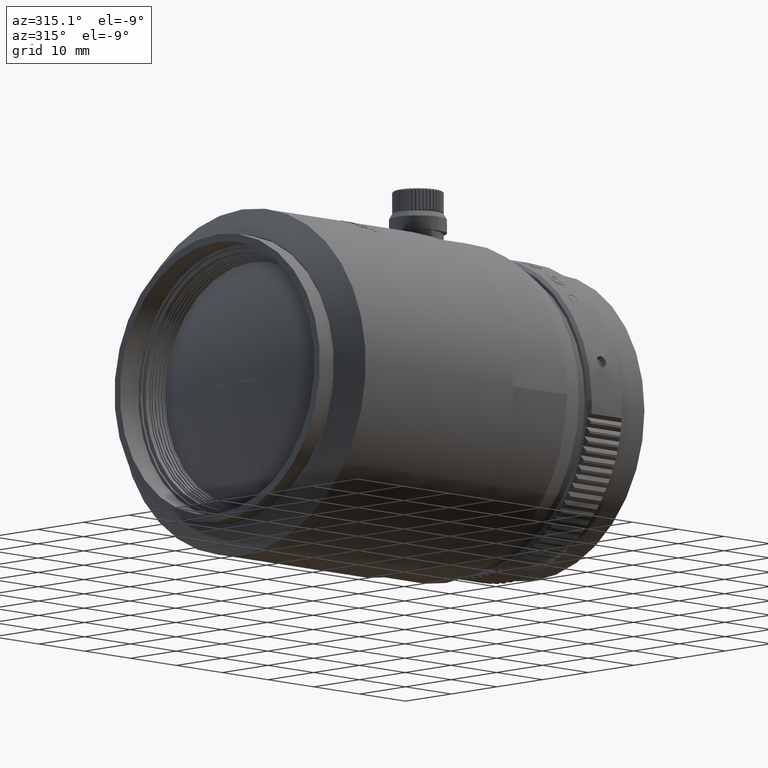
[diagram: clean part render]
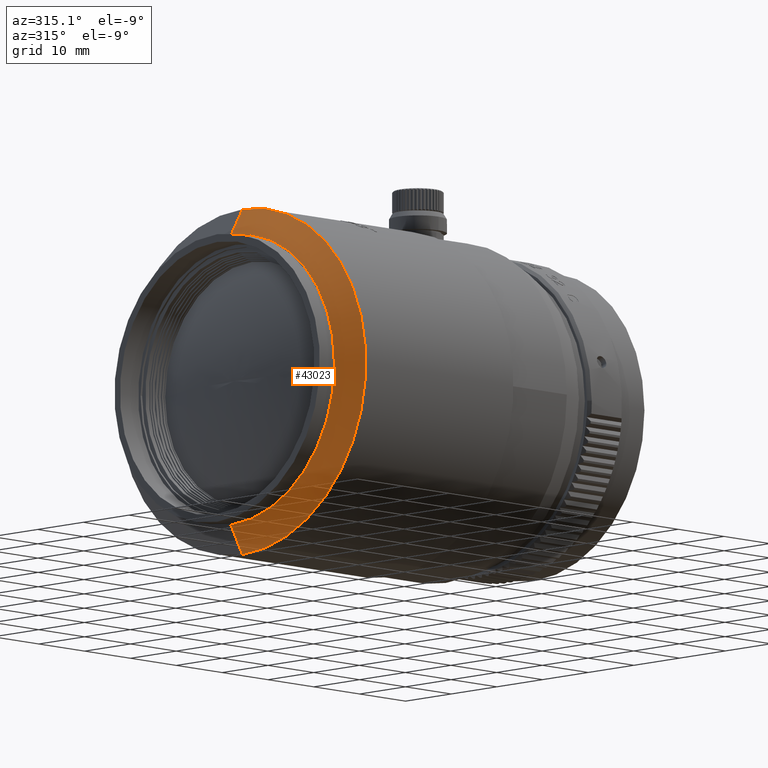
[diagram: same view with one face highlighted and labeled with its STEP entity id]
A machine part, auxiliary view. The second image highlights one B-rep face of the part: STEP entity #43023.
In plain terms, the highlighted conical surface has half-angle 60 deg.
Its self-contained STEP definition (entity closure, byte-faithful):
#936 = DIRECTION ( 'NONE',  ( -1.000000000000000000, -0.000000000000000000, -0.000000000000000000 ) ) ;
#1675 = VECTOR ( 'NONE', #13499, 1000.000000000000000 ) ;
#2641 = FACE_OUTER_BOUND ( 'NONE', #3721, .T. ) ;
#3721 = EDGE_LOOP ( 'NONE', ( #24998, #50020, #46094, #45714 ) ) ;
#9897 = LINE ( 'NONE', #44858, #11723 ) ;
#11096 = VERTEX_POINT ( 'NONE', #69798 ) ;
#11465 = CARTESIAN_POINT ( 'NONE',  ( 2614.921401344000060, 1132.760967307000101, 22.66987343396704446 ) ) ;
#11723 = VECTOR ( 'NONE', #38492, 1000.000000000000000 ) ;
#13499 = DIRECTION ( 'NONE',  ( 0.5000000000748443529, 1.060575238671988276E-16, 0.8660254037412272732 ) ) ;
#18550 = CONICAL_SURFACE ( 'NONE', #62963, 27.00000030106730620, 1.047197551110174985 ) ;
#21161 = CARTESIAN_POINT ( 'NONE',  ( 2617.421401517830873, 1132.760967307000101, -26.99999984902603956 ) ) ;
#22893 = VERTEX_POINT ( 'NONE', #21161 ) ;
#24998 = ORIENTED_EDGE ( 'NONE', *, *, #55877, .F. ) ;
#27252 = AXIS2_PLACEMENT_3D ( 'NONE', #60153, #936, #54183 ) ;
#27768 = CARTESIAN_POINT ( 'NONE',  ( 2617.421401517830873, 1132.760967307000101, 27.00000075310857284 ) ) ;
#28059 = CARTESIAN_POINT ( 'NONE',  ( 2617.421401517830873, 1132.760967307000101, 4.520412666408998064E-07 ) ) ;
#32832 = DIRECTION ( 'NONE',  ( 0.000000000000000000, 0.000000000000000000, -1.000000000000000000 ) ) ;
#38492 = DIRECTION ( 'NONE',  ( 0.5000000000748443529, 0.000000000000000000, -0.8660254037412272732 ) ) ;
#40630 = EDGE_CURVE ( 'NONE', #22893, #76373, #41169, .T. ) ;
#41169 = CIRCLE ( 'NONE', #27252, 27.00000030106753002 ) ;
#43023 = ADVANCED_FACE ( 'NONE', ( #2641 ), #18550, .T. ) ;
#44858 = CARTESIAN_POINT ( 'NONE',  ( 2617.421401517830873, 1132.760967307000101, -26.99999984902603956 ) ) ;
#45714 = ORIENTED_EDGE ( 'NONE', *, *, #40630, .T. ) ;
#46094 = ORIENTED_EDGE ( 'NONE', *, *, #77287, .T. ) ;
#47348 = VERTEX_POINT ( 'NONE', #11465 ) ;
#50020 = ORIENTED_EDGE ( 'NONE', *, *, #53999, .F. ) ;
#51093 = CARTESIAN_POINT ( 'NONE',  ( 2614.921401344000060, 1132.760967307000101, 4.520412666408998064E-07 ) ) ;
#51487 = DIRECTION ( 'NONE',  ( -1.000000000000000000, 0.000000000000000000, 0.000000000000000000 ) ) ;
#53999 = EDGE_CURVE ( 'NONE', #11096, #47348, #57368, .T. ) ;
#54183 = DIRECTION ( 'NONE',  ( 0.000000000000000000, 0.000000000000000000, -1.000000000000000000 ) ) ;
#55877 = EDGE_CURVE ( 'NONE', #47348, #76373, #73849, .T. ) ;
#57368 = CIRCLE ( 'NONE', #68792, 22.66987298192577782 ) ;
#60153 = CARTESIAN_POINT ( 'NONE',  ( 2617.421401517830873, 1132.760967307000101, 4.520412666408998064E-07 ) ) ;
#62963 = AXIS2_PLACEMENT_3D ( 'NONE', #28059, #76500, #32832 ) ;
#67865 = CARTESIAN_POINT ( 'NONE',  ( 2617.421401517830873, 1132.760967307000101, 27.00000075310857284 ) ) ;
#68792 = AXIS2_PLACEMENT_3D ( 'NONE', #51093, #51487, #75704 ) ;
#69798 = CARTESIAN_POINT ( 'NONE',  ( 2614.921401344000060, 1132.760967307000101, -22.66987252988451118 ) ) ;
#73849 = LINE ( 'NONE', #67865, #1675 ) ;
#75704 = DIRECTION ( 'NONE',  ( 0.000000000000000000, 0.000000000000000000, 1.000000000000000000 ) ) ;
#76373 = VERTEX_POINT ( 'NONE', #27768 ) ;
#76500 = DIRECTION ( 'NONE',  ( 1.000000000000000000, 0.000000000000000000, 0.000000000000000000 ) ) ;
#77287 = EDGE_CURVE ( 'NONE', #11096, #22893, #9897, .T. ) ;